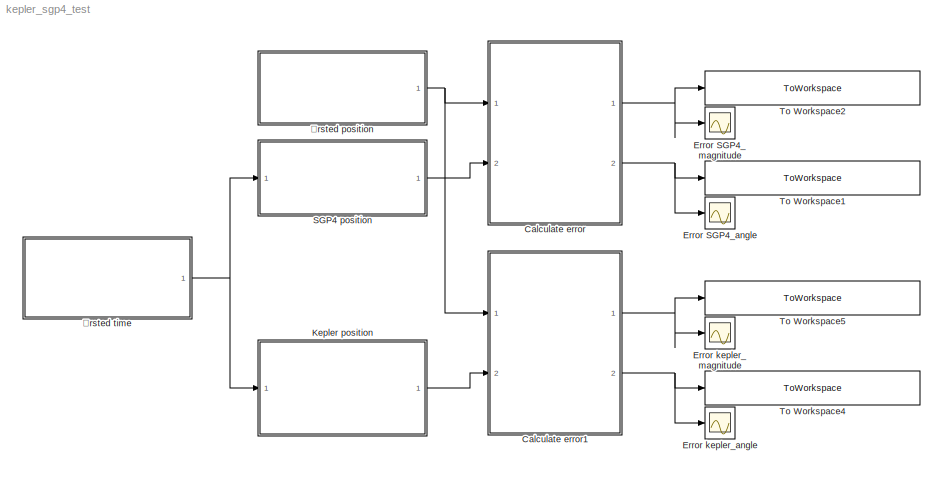
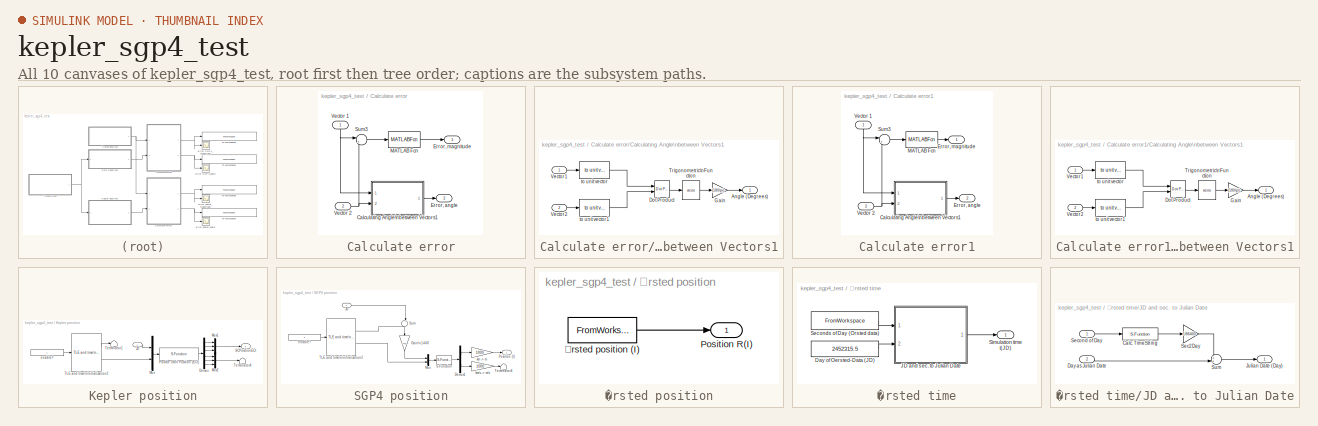
[diagram: thumbnail index - all 10 canvases of the model, root first then tree order]
MODEL kepler_sgp4_test
KIND model
BLOCK [SubSystem] Calculate error
  MinAlgLoopOccurrences = off
  Ports = [2, 2]
  RTWSystemCode = Auto
  TreatAsAtomicUnit = off
BLOCK [SubSystem] Calculate error/Calculating Angle\nbetween Vectors1
  MinAlgLoopOccurrences = off
  Ports = [2, 1]
  RTWSystemCode = Auto
  TreatAsAtomicUnit = off
BLOCK [Outport] Calculate error/Calculating Angle\nbetween Vectors1/Angle (Degrees)
  BusOutputAsStruct = off
  IconDisplay = Port number
BLOCK [Reference] Calculate error/Calculating Angle\nbetween Vectors1/Dot Product  REF=simulink/Math\nOperations/Dot Product
  DoSatur = off
  InputSameDT = on
  LockScale = off
  OutDataType = sfix(16)
  OutScaling = 2^-10
  OutputDataTypeScalingMode = Inherit via internal rule
  Ports = [2, 1]
  RndMeth = Floor
  SourceBlock = simulink/Math\nOperations/Dot Product
  SourceType = Dot Product
BLOCK [Gain] Calculate error/Calculating Angle\nbetween Vectors1/Gain
  Gain = (180/pi)
BLOCK [Trigonometry] Calculate error/Calculating Angle\nbetween Vectors1/Trigonometric\nFunction
  Operator = acos
  Ports = [1, 1]
BLOCK [Inport] Calculate error/Calculating Angle\nbetween Vectors1/Vector1
  IconDisplay = Port number
  LatchInput = off
  Port = 1
BLOCK [Inport] Calculate error/Calculating Angle\nbetween Vectors1/Vector2
  IconDisplay = Port number
  LatchInput = off
  Port = 2
BLOCK [Reference] Calculate error/Calculating Angle\nbetween Vectors1/to unit vector  REF=components_lib/Math utilities/Vector operations/to unit vector  (lib defined in mdl_419550584dda)
  Ports = [1, 1]
  ShowPortLabels = on
  SourceBlock = components_lib/Math utilities/Vector operations/to unit vector
  SourceType = SubSystem
BLOCK [Reference] Calculate error/Calculating Angle\nbetween Vectors1/to unit vector1  REF=components_lib/Math utilities/Vector operations/to unit vector  (lib defined in mdl_419550584dda)
  Ports = [1, 1]
  ShowPortLabels = on
  SourceBlock = components_lib/Math utilities/Vector operations/to unit vector
  SourceType = SubSystem
BLOCK [Outport] Calculate error/Error, angle
  BusOutputAsStruct = off
  IconDisplay = Port number
  Port = 2
BLOCK [Outport] Calculate error/Error, magnitude
  BusOutputAsStruct = off
  IconDisplay = Port number
BLOCK [MATLABFcn] Calculate error/MATLAB Fcn
  MATLABFcn = norm
BLOCK [Sum] Calculate error/Sum3
  IconShape = round
  Inputs = |+-
  Ports = [2, 1]
BLOCK [Inport] Calculate error/Vector 1
  IconDisplay = Port number
  LatchInput = off
  Port = 1
BLOCK [Inport] Calculate error/Vector 2
  IconDisplay = Port number
  LatchInput = off
  Port = 2
BLOCK [SubSystem] Calculate error1
  MinAlgLoopOccurrences = off
  Ports = [2, 2]
  RTWSystemCode = Auto
  TreatAsAtomicUnit = off
BLOCK [SubSystem] Calculate error1/Calculating Angle\nbetween Vectors1
  MinAlgLoopOccurrences = off
  Ports = [2, 1]
  RTWSystemCode = Auto
  TreatAsAtomicUnit = off
BLOCK [Outport] Calculate error1/Calculating Angle\nbetween Vectors1/Angle (Degrees)
  BusOutputAsStruct = off
  IconDisplay = Port number
BLOCK [Reference] Calculate error1/Calculating Angle\nbetween Vectors1/Dot Product  REF=simulink/Math\nOperations/Dot Product
  DoSatur = off
  InputSameDT = on
  LockScale = off
  OutDataType = sfix(16)
  OutScaling = 2^-10
  OutputDataTypeScalingMode = Inherit via internal rule
  Ports = [2, 1]
  RndMeth = Floor
  SourceBlock = simulink/Math\nOperations/Dot Product
  SourceType = Dot Product
BLOCK [Gain] Calculate error1/Calculating Angle\nbetween Vectors1/Gain
  Gain = (180/pi)
BLOCK [Trigonometry] Calculate error1/Calculating Angle\nbetween Vectors1/Trigonometric\nFunction
  Operator = acos
  Ports = [1, 1]
BLOCK [Inport] Calculate error1/Calculating Angle\nbetween Vectors1/Vector1
  IconDisplay = Port number
  LatchInput = off
  Port = 1
BLOCK [Inport] Calculate error1/Calculating Angle\nbetween Vectors1/Vector2
  IconDisplay = Port number
  LatchInput = off
  Port = 2
BLOCK [Reference] Calculate error1/Calculating Angle\nbetween Vectors1/to unit vector  REF=components_lib/Math utilities/Vector operations/to unit vector  (lib defined in mdl_419550584dda)
  Ports = [1, 1]
  ShowPortLabels = on
  SourceBlock = components_lib/Math utilities/Vector operations/to unit vector
  SourceType = SubSystem
BLOCK [Reference] Calculate error1/Calculating Angle\nbetween Vectors1/to unit vector1  REF=components_lib/Math utilities/Vector operations/to unit vector  (lib defined in mdl_419550584dda)
  Ports = [1, 1]
  ShowPortLabels = on
  SourceBlock = components_lib/Math utilities/Vector operations/to unit vector
  SourceType = SubSystem
BLOCK [Outport] Calculate error1/Error, angle
  BusOutputAsStruct = off
  IconDisplay = Port number
  Port = 2
BLOCK [Outport] Calculate error1/Error, magnitude
  BusOutputAsStruct = off
  IconDisplay = Port number
BLOCK [MATLABFcn] Calculate error1/MATLAB Fcn
  MATLABFcn = norm
BLOCK [Sum] Calculate error1/Sum3
  IconShape = round
  Inputs = |+-
  Ports = [2, 1]
BLOCK [Inport] Calculate error1/Vector 1
  IconDisplay = Port number
  LatchInput = off
  Port = 1
BLOCK [Inport] Calculate error1/Vector 2
  IconDisplay = Port number
  LatchInput = off
  Port = 2
BLOCK [Scope] Error SGP4_angle
  DataFormat = Structure
  LimitDataPoints = off
  NumInputPorts = 1
  Ports = [1]
  SaveName = SGP4error1
  YMax = 30000
  YMin = 0
BLOCK [Scope] Error SGP4_magnitude
  DataFormat = Structure
  LimitDataPoints = off
  NumInputPorts = 1
  Ports = [1]
  SaveName = SGP4error
  YMax = 30000
  YMin = 0
BLOCK [Scope] Error kepler_angle
  DataFormat = Structure
  LimitDataPoints = off
  NumInputPorts = 1
  Ports = [1]
  SaveName = SGP4error2
  YMax = 30000
  YMin = 0
BLOCK [Scope] Error kepler_magnitude
  DataFormat = Structure
  LimitDataPoints = off
  NumInputPorts = 1
  Ports = [1]
  SaveName = SGP4error3
  YMax = 30000
  YMin = 0
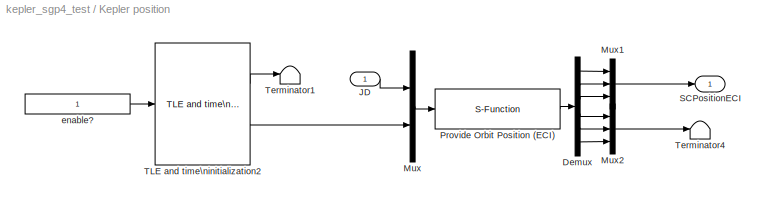
BLOCK [SubSystem] Kepler position
  AncestorBlock = onboardorbit/ONBOARDorbitECI
  MinAlgLoopOccurrences = off
  Ports = [1, 1]
  RTWSystemCode = Auto
  TreatAsAtomicUnit = off
BLOCK [Demux] Kepler position/Demux
  DisplayOption = bar
  Outputs = 6
  Ports = [1, 6]
BLOCK [Inport] Kepler position/JD
  IconDisplay = Port number
  LatchInput = off
  Port = 1
BLOCK [Mux] Kepler position/Mux
  DisplayOption = bar
  Inputs = 2
  Ports = [2, 1]
BLOCK [Mux] Kepler position/Mux1
  DisplayOption = bar
  Inputs = 3
  Ports = [3, 1]
BLOCK [Mux] Kepler position/Mux2
  DisplayOption = bar
  Inputs = 3
  Ports = [3, 1]
BLOCK [S-Function] Kepler position/Provide Orbit Position (ECI)
  FunctionName = kepler
  Ports = [1, 1]
BLOCK [Outport] Kepler position/SCPositionECI
  BusOutputAsStruct = off
  IconDisplay = Port number
  InitialOutput = 0
BLOCK [Reference] Kepler position/TLE and time\ninitialization2  REF=sgp4_igrf_lib/Orbit and Magnetic field models/TLE and time\ninitialization1
  JulianDay = 2452275.5+40.69255057
  Ports = [1, 2]
  ShowPortLabels = on
  SourceBlock = sgp4_igrf_lib/Orbit and Magnetic field models/TLE and time\ninitialization1
  YYDDD = 02039
  bstar = 0.00071190
  eo = 0.0148615
  omegao = 71.6037
  satname = 'Orsted'
  ts = 1
  xincl = 96.4788
  xmo = 290.1241
  xndd6o = 0
  xndt2o = 0.00002748*0
  xno = 14.43891950
  xnodeo = 112.1945
BLOCK [Terminator] Kepler position/Terminator1
BLOCK [Terminator] Kepler position/Terminator4
BLOCK [Constant] Kepler position/enable?
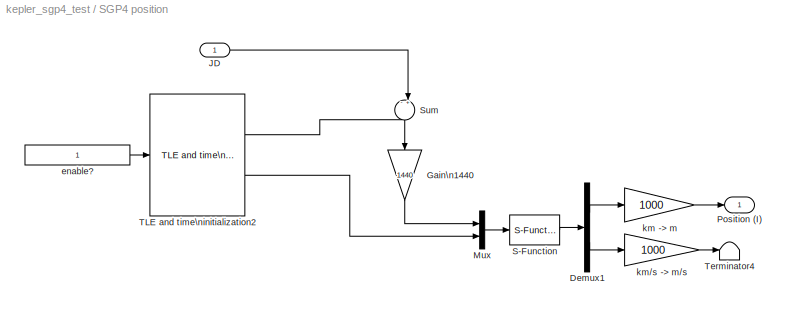
BLOCK [SubSystem] SGP4 position
  MinAlgLoopOccurrences = off
  Ports = [1, 1]
  RTWSystemCode = Auto
  TreatAsAtomicUnit = on
BLOCK [S-Function] SGP4 position/ S-Function
  FunctionName = sgp4S
  Ports = [1, 1]
BLOCK [Demux] SGP4 position/Demux1
  Outputs = [3 3]
  Ports = [1, 2]
BLOCK [Gain] SGP4 position/Gain\n1440
  Gain = 1440
BLOCK [Inport] SGP4 position/JD
  IconDisplay = Port number
  LatchInput = off
  Port = 1
BLOCK [Mux] SGP4 position/Mux
  DisplayOption = bar
  Inputs = 2
  Ports = [2, 1]
BLOCK [Outport] SGP4 position/Position (I)
  BusOutputAsStruct = off
  IconDisplay = Port number
  InitialOutput = 0
BLOCK [Sum] SGP4 position/Sum
  IconShape = round
  Inputs = -+|
  Ports = [2, 1]
BLOCK [Reference] SGP4 position/TLE and time\ninitialization2  REF=sgp4_igrf_lib/Orbit and Magnetic field models/TLE and time\ninitialization1
  JulianDay = 2452275.5+40.69255057
  Ports = [1, 2]
  ShowPortLabels = on
  SourceBlock = sgp4_igrf_lib/Orbit and Magnetic field models/TLE and time\ninitialization1
  YYDDD = 02039
  bstar = 0.00071190
  eo = 0.0148615
  omegao = 71.6037
  satname = 'Orsted'
  ts = 1
  xincl = 96.4788
  xmo = 290.1241
  xndd6o = 0
  xndt2o = 0.00002748*0
  xno = 14.43891950
  xnodeo = 112.1945
BLOCK [Terminator] SGP4 position/Terminator4
BLOCK [Constant] SGP4 position/enable?
BLOCK [Gain] SGP4 position/km -> m
  Gain = 1000
BLOCK [Gain] SGP4 position/km//s -> m//s
  Gain = 1000
BLOCK [ToWorkspace] To Workspace1
  MaxDataPoints = inf
  SampleTime = -1
  SaveFormat = Array
  VariableName = Error_SGP4_angle_workspace
BLOCK [ToWorkspace] To Workspace2
  MaxDataPoints = inf
  SampleTime = -1
  SaveFormat = Array
  VariableName = Error_SGP4_magnitude_workspace
BLOCK [ToWorkspace] To Workspace4
  MaxDataPoints = inf
  SampleTime = -1
  SaveFormat = Array
  VariableName = Error_kepler_angle_workspace
BLOCK [ToWorkspace] To Workspace5
  MaxDataPoints = inf
  SampleTime = -1
  SaveFormat = Array
  VariableName = Error_kepler_magnitude_workspace
BLOCK [SubSystem] Ørsted position
  MinAlgLoopOccurrences = off
  Ports = [0, 1]
  RTWSystemCode = Auto
  TreatAsAtomicUnit = on
BLOCK [Outport] Ørsted position/Position R(I)
  BusOutputAsStruct = off
  IconDisplay = Port number
BLOCK [FromWorkspace] Ørsted position/Ørsted position (I)
  SampleTime = 1
  VariableName = [oersted_data.time.sample_number oersted_data.pos.ECIRF(:,1) oersted_data.pos.ECIRF(:,2) oersted_data.pos.ECIRF(:,3) ]
BLOCK [SubSystem] Ørsted time
  MinAlgLoopOccurrences = off
  Ports = [0, 1]
  RTWSystemCode = Auto
  TreatAsAtomicUnit = on
BLOCK [Constant] Ørsted time/Day of Oersted-Data  (JD)
  Value = 2452315.5
BLOCK [SubSystem] Ørsted time/JD and sec. to Julian Date
  MinAlgLoopOccurrences = off
  Ports = [2, 1]
  RTWSystemCode = Auto
  TreatAsAtomicUnit = off
BLOCK [S-Function] Ørsted time/JD and sec. to Julian Date/Calc. TimeString
  FunctionName = Qcontinuum
  Ports = [1, 1]
BLOCK [Inport] Ørsted time/JD and sec. to Julian Date/Day as Julian Date
  IconDisplay = Port number
  LatchInput = off
  Port = 2
BLOCK [Outport] Ørsted time/JD and sec. to Julian Date/Julian Date (Day)
  BusOutputAsStruct = off
  IconDisplay = Port number
BLOCK [Gain] Ørsted time/JD and sec. to Julian Date/Sec2Day
  Gain = 1/86400
BLOCK [Inport] Ørsted time/JD and sec. to Julian Date/Second of Day
  IconDisplay = Port number
  LatchInput = off
  Port = 1
BLOCK [Sum] Ørsted time/JD and sec. to Julian Date/Sum
  IconShape = round
  Inputs = ++|
  Ports = [2, 1]
BLOCK [FromWorkspace] Ørsted time/Seconds of Day (Orsted data)
  SampleTime = 1
  VariableName = [oersted_data.time.sample_number oersted_data.time.second oersted_data.time.day]
BLOCK [Outport] Ørsted time/Simulation time t(JD)
  BusOutputAsStruct = off
  IconDisplay = Port number
LINE Calculate error/Calculating Angle\nbetween Vectors1/Dot Product:1 -> Calculate error/Calculating Angle\nbetween Vectors1/Trigonometric\nFunction:1
LINE Calculate error/Calculating Angle\nbetween Vectors1/Gain:1 -> Calculate error/Calculating Angle\nbetween Vectors1/Angle (Degrees):1
LINE Calculate error/Calculating Angle\nbetween Vectors1/Trigonometric\nFunction:1 -> Calculate error/Calculating Angle\nbetween Vectors1/Gain:1
LINE Calculate error/Calculating Angle\nbetween Vectors1/Vector1:1 -> Calculate error/Calculating Angle\nbetween Vectors1/to unit vector:1
LINE Calculate error/Calculating Angle\nbetween Vectors1/Vector2:1 -> Calculate error/Calculating Angle\nbetween Vectors1/to unit vector1:1
LINE Calculate error/Calculating Angle\nbetween Vectors1/to unit vector1:1 -> Calculate error/Calculating Angle\nbetween Vectors1/Dot Product:2
LINE Calculate error/Calculating Angle\nbetween Vectors1/to unit vector:1 -> Calculate error/Calculating Angle\nbetween Vectors1/Dot Product:1
LINE Calculate error/Calculating Angle\nbetween Vectors1:1 -> Calculate error/Error, angle:1
LINE Calculate error/MATLAB Fcn:1 -> Calculate error/Error, magnitude:1
LINE Calculate error/Sum3:1 -> Calculate error/MATLAB Fcn:1
NET Calculate error/Vector 1:1 -> Calculate error/Calculating Angle\nbetween Vectors1:1, Calculate error/Sum3:1
NET Calculate error/Vector 2:1 -> Calculate error/Calculating Angle\nbetween Vectors1:2, Calculate error/Sum3:2
LINE Calculate error1/Calculating Angle\nbetween Vectors1/Dot Product:1 -> Calculate error1/Calculating Angle\nbetween Vectors1/Trigonometric\nFunction:1
LINE Calculate error1/Calculating Angle\nbetween Vectors1/Gain:1 -> Calculate error1/Calculating Angle\nbetween Vectors1/Angle (Degrees):1
LINE Calculate error1/Calculating Angle\nbetween Vectors1/Trigonometric\nFunction:1 -> Calculate error1/Calculating Angle\nbetween Vectors1/Gain:1
LINE Calculate error1/Calculating Angle\nbetween Vectors1/Vector1:1 -> Calculate error1/Calculating Angle\nbetween Vectors1/to unit vector:1
LINE Calculate error1/Calculating Angle\nbetween Vectors1/Vector2:1 -> Calculate error1/Calculating Angle\nbetween Vectors1/to unit vector1:1
LINE Calculate error1/Calculating Angle\nbetween Vectors1/to unit vector1:1 -> Calculate error1/Calculating Angle\nbetween Vectors1/Dot Product:2
LINE Calculate error1/Calculating Angle\nbetween Vectors1/to unit vector:1 -> Calculate error1/Calculating Angle\nbetween Vectors1/Dot Product:1
LINE Calculate error1/Calculating Angle\nbetween Vectors1:1 -> Calculate error1/Error, angle:1
LINE Calculate error1/MATLAB Fcn:1 -> Calculate error1/Error, magnitude:1
LINE Calculate error1/Sum3:1 -> Calculate error1/MATLAB Fcn:1
NET Calculate error1/Vector 1:1 -> Calculate error1/Calculating Angle\nbetween Vectors1:1, Calculate error1/Sum3:1
NET Calculate error1/Vector 2:1 -> Calculate error1/Calculating Angle\nbetween Vectors1:2, Calculate error1/Sum3:2
NET Calculate error1:1 -> Error kepler_magnitude:1, To Workspace5:1
NET Calculate error1:2 -> Error kepler_angle:1, To Workspace4:1
NET Calculate error:1 -> Error SGP4_magnitude:1, To Workspace2:1
NET Calculate error:2 -> Error SGP4_angle:1, To Workspace1:1
LINE Kepler position/Demux:1 -> Kepler position/Mux1:1
LINE Kepler position/Demux:2 -> Kepler position/Mux1:2
LINE Kepler position/Demux:3 -> Kepler position/Mux1:3
LINE Kepler position/Demux:4 -> Kepler position/Mux2:1
LINE Kepler position/Demux:5 -> Kepler position/Mux2:2
LINE Kepler position/Demux:6 -> Kepler position/Mux2:3
LINE Kepler position/JD:1 -> Kepler position/Mux:1
LINE Kepler position/Mux1:1 -> Kepler position/SCPositionECI:1
LINE Kepler position/Mux2:1 -> Kepler position/Terminator4:1
LINE Kepler position/Mux:1 -> Kepler position/Provide Orbit Position (ECI):1
LINE Kepler position/Provide Orbit Position (ECI):1 -> Kepler position/Demux:1
LINE Kepler position/TLE and time\ninitialization2:1 -> Kepler position/Terminator1:1
LINE Kepler position/TLE and time\ninitialization2:2 -> Kepler position/Mux:2
LINE Kepler position/enable?:1 -> Kepler position/TLE and time\ninitialization2:1
LINE Kepler position:1 -> Calculate error1:2
LINE SGP4 position/ S-Function:1 -> SGP4 position/Demux1:1
LINE SGP4 position/Demux1:1 -> SGP4 position/km -> m:1
LINE SGP4 position/Demux1:2 -> SGP4 position/km//s -> m//s:1
LINE SGP4 position/Gain\n1440:1 -> SGP4 position/Mux:1
LINE SGP4 position/JD:1 -> SGP4 position/Sum:2
LINE SGP4 position/Mux:1 -> SGP4 position/ S-Function:1
LINE SGP4 position/Sum:1 -> SGP4 position/Gain\n1440:1
LINE SGP4 position/TLE and time\ninitialization2:1 -> SGP4 position/Sum:1
LINE SGP4 position/TLE and time\ninitialization2:2 -> SGP4 position/Mux:2
LINE SGP4 position/enable?:1 -> SGP4 position/TLE and time\ninitialization2:1
LINE SGP4 position/km -> m:1 -> SGP4 position/Position (I):1
LINE SGP4 position/km//s -> m//s:1 -> SGP4 position/Terminator4:1
LINE SGP4 position:1 -> Calculate error:2
LINE Ørsted position/Ørsted position (I):1 -> Ørsted position/Position R(I):1
NET Ørsted position:1 -> Calculate error1:1, Calculate error:1
LINE Ørsted time/Day of Oersted-Data  (JD):1 -> Ørsted time/JD and sec. to Julian Date:2
LINE Ørsted time/JD and sec. to Julian Date/Calc. TimeString:1 -> Ørsted time/JD and sec. to Julian Date/Sec2Day:1
LINE Ørsted time/JD and sec. to Julian Date/Day as Julian Date:1 -> Ørsted time/JD and sec. to Julian Date/Sum:2
LINE Ørsted time/JD and sec. to Julian Date/Sec2Day:1 -> Ørsted time/JD and sec. to Julian Date/Sum:1
LINE Ørsted time/JD and sec. to Julian Date/Second of Day:1 -> Ørsted time/JD and sec. to Julian Date/Calc. TimeString:1
LINE Ørsted time/JD and sec. to Julian Date/Sum:1 -> Ørsted time/JD and sec. to Julian Date/Julian Date (Day):1
LINE Ørsted time/JD and sec. to Julian Date:1 -> Ørsted time/Simulation time t(JD):1
LINE Ørsted time/Seconds of Day (Orsted data):1 -> Ørsted time/JD and sec. to Julian Date:1
NET Ørsted time:1 -> Kepler position:1, SGP4 position:1
note: NET lines group one-source signal fan-out (src -> all destinations, sorted); 1:1 wires keep LINE
